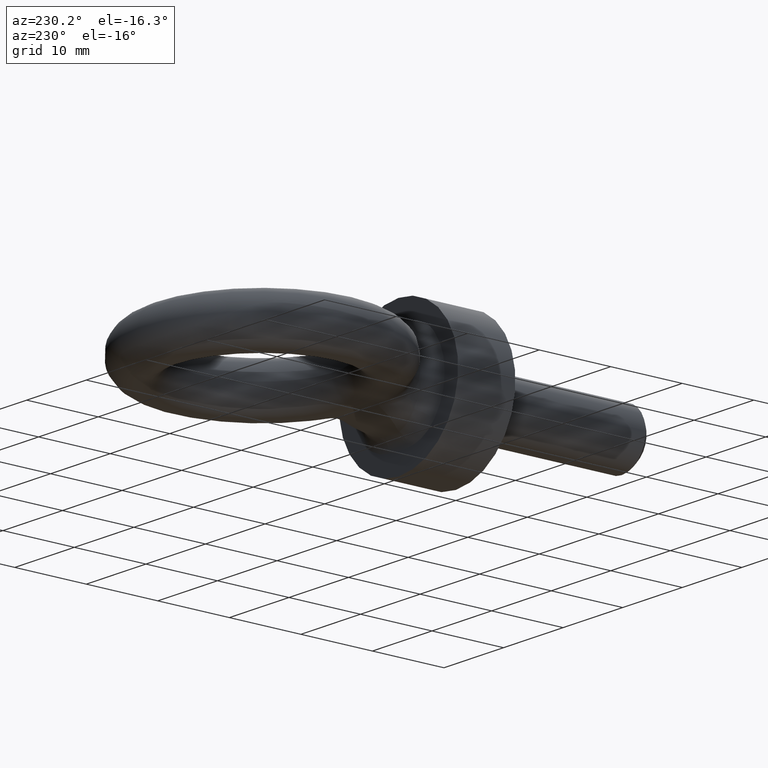
[diagram: clean part render]
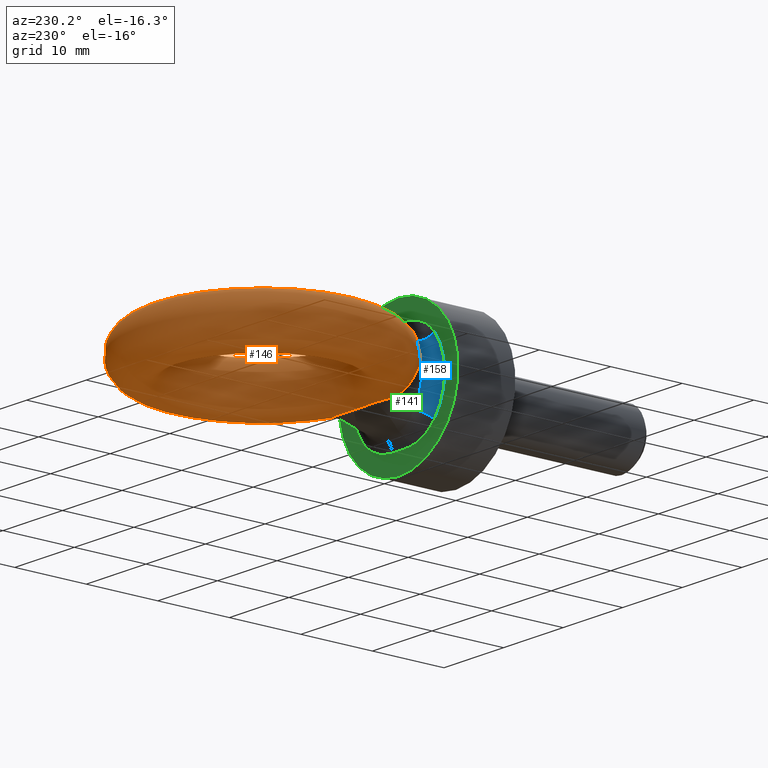
[diagram: same view with three faces highlighted in distinct colors, each labeled with its STEP entity id]
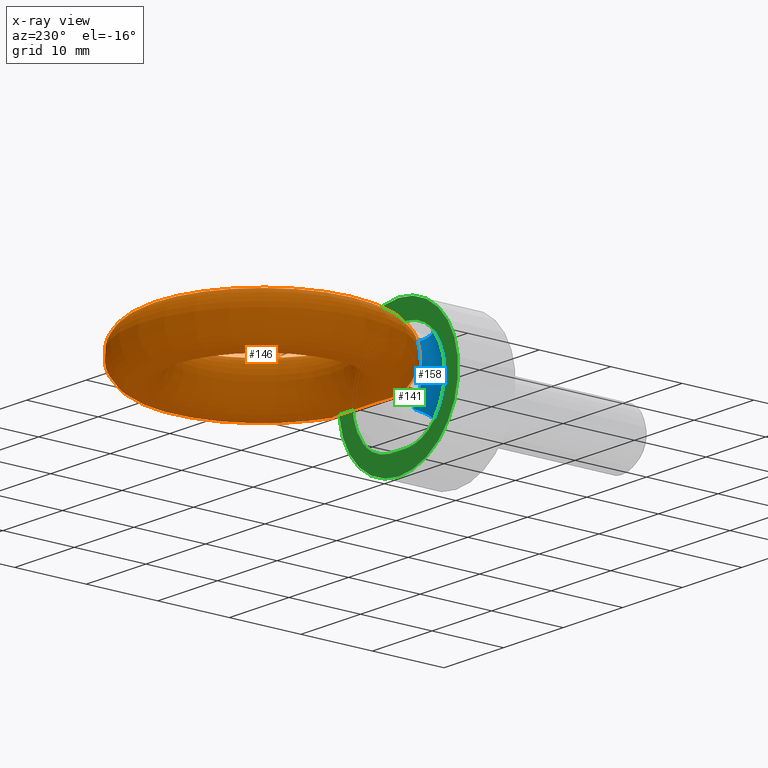
[diagram: x-ray of the same camera — body ghosted, the three highlighted faces saturated]
A machine part, auxiliary view with three faces highlighted in distinct colors.
The next image is the same camera in x-ray (body ghosted, the three faces saturated) — at least one of them is partly hidden behind the body in this view.
Their STEP definitions:

[orange] entity #146 — the highlighted toroidal blend (fillet) surface has major radius 13.5 mm and minor (blend) radius 3.5 mm.
#79=TOROIDAL_SURFACE('',#652,13.5,3.5);
#146=ADVANCED_FACE('',(#187),#79,.T.);
#187=FACE_OUTER_BOUND('',#229,.T.);
#229=EDGE_LOOP('',(#393,#394,#395,#396,#397,#398,#399,#400));
#280=B_SPLINE_CURVE_WITH_KNOTS('',3,(#1162,#1163,#1164,#1165,#1166,#1167,
#1168,#1169,#1170,#1171,#1172,#1173,#1174,#1175,#1176,#1177),
 .UNSPECIFIED.,.F.,.F.,(4,3,3,3,3,4),(0.,0.0906175556233815,0.31320017688697,
0.537413999528253,0.76841460526221,1.),.UNSPECIFIED.);
#281=B_SPLINE_CURVE_WITH_KNOTS('',3,(#1180,#1181,#1182,#1183,#1184,#1185),
 .UNSPECIFIED.,.F.,.F.,(4,2,4),(0.,0.5,1.),.UNSPECIFIED.);
#282=B_SPLINE_CURVE_WITH_KNOTS('',3,(#1187,#1188,#1189,#1190,#1191,#1192,
#1193),.UNSPECIFIED.,.F.,.F.,(4,3,4),(0.,0.612495546188875,1.),
 .UNSPECIFIED.);
#283=B_SPLINE_CURVE_WITH_KNOTS('',3,(#1195,#1196,#1197,#1198,#1199,#1200,
#1201,#1202,#1203,#1204,#1205,#1206,#1207,#1208,#1209,#1210),
 .UNSPECIFIED.,.F.,.F.,(4,3,3,3,3,4),(0.,0.195955899448234,0.458999195335696,
0.711756891813488,0.930843255163097,1.),.UNSPECIFIED.);
#284=B_SPLINE_CURVE_WITH_KNOTS('',3,(#1212,#1213,#1214,#1215,#1216,#1217,
#1218,#1219,#1220,#1221,#1222,#1223,#1224,#1225,#1226,#1227),
 .UNSPECIFIED.,.F.,.F.,(4,3,3,3,3,4),(0.,0.0752145849826018,0.30210714432212,
0.530216371654006,0.764840135848993,1.),.UNSPECIFIED.);
#285=B_SPLINE_CURVE_WITH_KNOTS('',3,(#1229,#1230,#1231,#1232,#1233,#1234,
#1235,#1236,#1237,#1238,#1239,#1240,#1241),.UNSPECIFIED.,.F.,.F.,(4,3,3,
3,4),(0.,0.248458670485199,0.511916327520531,0.831134846658099,1.),
 .UNSPECIFIED.);
#286=B_SPLINE_CURVE_WITH_KNOTS('',3,(#1243,#1244,#1245,#1246,#1247,#1248,
#1249),.UNSPECIFIED.,.F.,.F.,(4,3,4),(0.,0.499640385015774,1.),
 .UNSPECIFIED.);
#287=B_SPLINE_CURVE_WITH_KNOTS('',3,(#1251,#1252,#1253,#1254,#1255,#1256,
#1257,#1258,#1259,#1260,#1261,#1262,#1263,#1264,#1265,#1266),
 .UNSPECIFIED.,.F.,.F.,(4,3,3,3,3,4),(0.,0.193271366590612,0.45459111054938,
0.706822945658072,0.954501272891583,1.),.UNSPECIFIED.);
#393=ORIENTED_EDGE('',*,*,#585,.T.);
#394=ORIENTED_EDGE('',*,*,#586,.T.);
#395=ORIENTED_EDGE('',*,*,#587,.T.);
#396=ORIENTED_EDGE('',*,*,#588,.T.);
#397=ORIENTED_EDGE('',*,*,#589,.T.);
#398=ORIENTED_EDGE('',*,*,#590,.T.);
#399=ORIENTED_EDGE('',*,*,#591,.T.);
#400=ORIENTED_EDGE('',*,*,#592,.T.);
#524=VERTEX_POINT('',#1178);
#525=VERTEX_POINT('',#1179);
#526=VERTEX_POINT('',#1186);
#527=VERTEX_POINT('',#1194);
#528=VERTEX_POINT('',#1211);
#529=VERTEX_POINT('',#1228);
#530=VERTEX_POINT('',#1242);
#531=VERTEX_POINT('',#1250);
#585=EDGE_CURVE('',#524,#525,#280,.T.);
#586=EDGE_CURVE('',#525,#526,#281,.T.);
#587=EDGE_CURVE('',#526,#527,#282,.T.);
#588=EDGE_CURVE('',#527,#528,#283,.T.);
#589=EDGE_CURVE('',#528,#529,#284,.T.);
#590=EDGE_CURVE('',#529,#530,#285,.T.);
#591=EDGE_CURVE('',#530,#531,#286,.T.);
#592=EDGE_CURVE('',#531,#524,#287,.T.);
#652=AXIS2_PLACEMENT_3D('',#1267,#744,#745);
#744=DIRECTION('',(0.,0.,-1.));
#745=DIRECTION('',(-1.,0.,0.));
#1162=CARTESIAN_POINT('',(6.40605372131366,12.178506150028,2.32788226436537));
#1163=CARTESIAN_POINT('',(6.47093425898372,12.0949533342118,2.2130152351109));
#1164=CARTESIAN_POINT('',(6.5340566794516,12.0188750550742,2.0912711670128));
#1165=CARTESIAN_POINT('',(6.5931996966537,11.9504355498682,1.96397965412876));
#1166=CARTESIAN_POINT('',(6.73687137589442,11.7841806121846,1.65475996473334));
#1167=CARTESIAN_POINT('',(6.85851549453243,11.6603422088572,1.30599939781528));
#1168=CARTESIAN_POINT('',(6.93545843204723,11.5833331461563,0.942614669657472));
#1169=CARTESIAN_POINT('',(7.01285340043065,11.5058716641089,0.577095098203874));
#1170=CARTESIAN_POINT('',(7.04668504764769,11.4740819364042,0.18655894366253));
#1171=CARTESIAN_POINT('',(7.03030393803473,11.4899528488556,-0.194327644226145));
#1172=CARTESIAN_POINT('',(7.01343691248848,11.506294543166,-0.586512542559645));
#1173=CARTESIAN_POINT('',(6.94284461894218,11.5736003807124,-0.979892168865486));
#1174=CARTESIAN_POINT('',(6.8329568198243,11.687884734184,-1.33936998481688));
#1175=CARTESIAN_POINT('',(6.72264006285432,11.8026152078909,-1.70025105784549));
#1176=CARTESIAN_POINT('',(6.56992894345612,11.9674684992284,-2.03775119252303));
#1177=CARTESIAN_POINT('',(6.40605372131366,12.178506150028,-2.32788226436537));
#1178=CARTESIAN_POINT('',(6.40605372131366,12.178506150028,2.32788226436537));
#1179=CARTESIAN_POINT('',(6.40605372131366,12.178506150028,-2.32788226436537));
#1180=CARTESIAN_POINT('',(6.40605372131366,12.178506150028,-2.32788226436537));
#1181=CARTESIAN_POINT('',(6.10075381576734,12.5716697656955,-2.86839710041857));
#1182=CARTESIAN_POINT('',(5.56834558277857,12.9994247208667,-3.1957141442558));
#1183=CARTESIAN_POINT('',(4.30770198745205,13.6648353147877,-3.50991708784342));
#1184=CARTESIAN_POINT('',(3.59187649562161,13.8970791302572,-3.5013174242771));
#1185=CARTESIAN_POINT('',(2.86015282552049,13.8509623368029,-3.49946773933094));
#1186=CARTESIAN_POINT('',(2.86015282552053,13.8509623368031,-3.49946773933081));
#1187=CARTESIAN_POINT('',(2.86015282552053,13.8509623368031,-3.49946773933081));
#1188=CARTESIAN_POINT('',(1.69472543130368,13.7775114199868,-3.49652171804569));
#1189=CARTESIAN_POINT('',(0.525295072000843,13.7675053584302,-3.48646810574505));
#1190=CARTESIAN_POINT('',(-0.642365138591432,13.7809224478603,-3.4902551526797));
#1191=CARTESIAN_POINT('',(-1.38125010290466,13.789412662355,-3.49265156219488));
#1192=CARTESIAN_POINT('',(-2.12049000431679,13.8110638862383,-3.49864251514948));
#1193=CARTESIAN_POINT('',(-2.85768012193657,13.8618397433787,-3.49980863019068));
#1194=CARTESIAN_POINT('',(-2.85768012193657,13.8618397433787,-3.49980863019068));
#1195=CARTESIAN_POINT('',(-2.85768012193657,13.8618397433787,-3.49980863019068));
#1196=CARTESIAN_POINT('',(-3.14122358651709,13.8813695255971,-3.50025714990218));
#1197=CARTESIAN_POINT('',(-3.42966640027798,13.8602710608942,-3.50100948083918));
#1198=CARTESIAN_POINT('',(-3.70843582398385,13.8055519727811,-3.49252775504067));
#1199=CARTESIAN_POINT('',(-4.08152993047564,13.7323180828652,-3.48117614457264));
#1200=CARTESIAN_POINT('',(-4.44618769075155,13.6003576503128,-3.45153423607972));
#1201=CARTESIAN_POINT('',(-4.78342881397976,13.4394717902394,-3.3802921219649));
#1202=CARTESIAN_POINT('',(-5.10718373878407,13.2850197203627,-3.31189896434118));
#1203=CARTESIAN_POINT('',(-5.41364201436673,13.099568615518,-3.20310446698256));
#1204=CARTESIAN_POINT('',(-5.6789094916096,12.9053586395757,-3.04415174446513));
#1205=CARTESIAN_POINT('',(-5.90892799839995,12.7369554522181,-2.90632079638308));
#1206=CARTESIAN_POINT('',(-6.11293542985732,12.5578343608373,-2.72709112241677));
#1207=CARTESIAN_POINT('',(-6.27155864733602,12.3863162984656,-2.51334887955305));
#1208=CARTESIAN_POINT('',(-6.32227534758037,12.3314767214222,-2.44500893894928));
#1209=CARTESIAN_POINT('',(-6.36872937145069,12.2770964514993,-2.37288745147997));
#1210=CARTESIAN_POINT('',(-6.41039027625731,12.2238053629871,-2.29755924114959));
#1211=CARTESIAN_POINT('',(-6.41039027625731,12.2238053629871,-2.29755924114959));
#1212=CARTESIAN_POINT('',(-6.41039027625731,12.2238053629871,-2.29755924114959));
#1213=CARTESIAN_POINT('',(-6.4628830621407,12.1566585328414,-2.20264561327222));
#1214=CARTESIAN_POINT('',(-6.51408603918062,12.0945428762236,-2.10321696764668));
#1215=CARTESIAN_POINT('',(-6.56278110721273,12.0375370596492,-2.00000886064301));
#1216=CARTESIAN_POINT('',(-6.70795405039452,11.8675875656853,-1.69231805622597));
#1217=CARTESIAN_POINT('',(-6.83208809096107,11.7404729245261,-1.34452506526286));
#1218=CARTESIAN_POINT('',(-6.91189080340936,11.6602878860295,-0.9814361894478));
#1219=CARTESIAN_POINT('',(-6.99201245690367,11.5797823784753,-0.616896185691144));
#1220=CARTESIAN_POINT('',(-7.02921278264602,11.544789178918,-0.226770474448808));
#1221=CARTESIAN_POINT('',(-7.01621841832854,11.5573780561604,0.15462524801001));
#1222=CARTESIAN_POINT('',(-7.00286109737949,11.5703185640303,0.546674058479641));
#1223=CARTESIAN_POINT('',(-6.93605459799089,11.6338895532823,0.940855132902103));
#1224=CARTESIAN_POINT('',(-6.82939845627469,11.7444726036354,1.30202545417218));
#1225=CARTESIAN_POINT('',(-6.72235905454284,11.8554530250253,1.66449361109203));
#1226=CARTESIAN_POINT('',(-6.57247970953383,12.0164665551592,2.00448094679044));
#1227=CARTESIAN_POINT('',(-6.41039027625731,12.2238053629871,2.29755924114959));
#1228=CARTESIAN_POINT('',(-6.41039027625731,12.2238053629871,2.29755924114959));
#1229=CARTESIAN_POINT('',(-6.41039027625731,12.2238053629871,2.29755924114959));
#1230=CARTESIAN_POINT('',(-6.26292155040839,12.4124419026513,2.56420143841971));
#1231=CARTESIAN_POINT('',(-6.05171536624216,12.6173172771946,2.79149380125507));
#1232=CARTESIAN_POINT('',(-5.80393175152732,12.8108388075596,2.96348661543364));
#1233=CARTESIAN_POINT('',(-5.54056171645867,13.0165334911949,3.1462983544338));
#1234=CARTESIAN_POINT('',(-5.22835577435629,13.2162750546144,3.27386658945499));
#1235=CARTESIAN_POINT('',(-4.89611575377174,13.3841294643407,3.35471011746765));
#1236=CARTESIAN_POINT('',(-4.49456053886666,13.5870033187662,3.45242002071078));
#1237=CARTESIAN_POINT('',(-4.04940146846539,13.7518355636479,3.4856049293962));
#1238=CARTESIAN_POINT('',(-3.59512639333957,13.8259202163617,3.4954658102107));
#1239=CARTESIAN_POINT('',(-3.3522799489439,13.8655244021975,3.50073724149877));
#1240=CARTESIAN_POINT('',(-3.10320919822015,13.8787511872562,3.5001970173137));
#1241=CARTESIAN_POINT('',(-2.85768012193675,13.8618397433787,3.49980863019068));
#1242=CARTESIAN_POINT('',(-2.85768012193675,13.8618397433787,3.49980863019068));
#1243=CARTESIAN_POINT('',(-2.85768012193675,13.8618397433787,3.49980863019068));
#1244=CARTESIAN_POINT('',(-1.90728539153385,13.7963788725605,3.49830526007799));
#1245=CARTESIAN_POINT('',(-0.953667054965296,13.7781158730942,3.48943864075467));
#1246=CARTESIAN_POINT('',(-0.00102028164533801,13.7768890981453,3.48905184122442));
#1247=CARTESIAN_POINT('',(0.953029096857215,13.7756605169856,3.48866447219976));
#1248=CARTESIAN_POINT('',(1.90799478940327,13.7909526948006,3.49706083019593));
#1249=CARTESIAN_POINT('',(2.86015282552053,13.8509623368031,3.49946773933081));
#1250=CARTESIAN_POINT('',(2.86015282552053,13.8509623368031,3.49946773933081));
#1251=CARTESIAN_POINT('',(2.86015282552053,13.8509623368031,3.49946773933081));
#1252=CARTESIAN_POINT('',(3.1398171164765,13.8685881440164,3.50017468766404));
#1253=CARTESIAN_POINT('',(3.42406069310178,13.845992672454,3.50159550197131));
#1254=CARTESIAN_POINT('',(3.69861081489003,13.7903527058103,3.4945450247029));
#1255=CARTESIAN_POINT('',(4.06876901744305,13.715336931245,3.48503932142433));
#1256=CARTESIAN_POINT('',(4.43009759837736,13.5818419460157,3.45843371008871));
#1257=CARTESIAN_POINT('',(4.7647706430057,13.419788507595,3.39159467926873));
#1258=CARTESIAN_POINT('',(5.08752240344994,13.2635075241821,3.32713650072768));
#1259=CARTESIAN_POINT('',(5.39330398575747,13.0763134801594,3.22338091711836));
#1260=CARTESIAN_POINT('',(5.65915569533128,12.8800201699856,3.0699563222032));
#1261=CARTESIAN_POINT('',(5.919301847846,12.6879395943595,2.91982443803254));
#1262=CARTESIAN_POINT('',(6.14773445377352,12.4813850121509,2.71668368324998));
#1263=CARTESIAN_POINT('',(6.31696103017738,12.2867107608401,2.4705640932924));
#1264=CARTESIAN_POINT('',(6.34860619826605,12.2503069078745,2.42454002331691));
#1265=CARTESIAN_POINT('',(6.3783535296627,12.2141783114219,2.37692376184656));
#1266=CARTESIAN_POINT('',(6.40605372131366,12.178506150028,2.32788226436537));
#1267=CARTESIAN_POINT('',(0.0837289890841756,27.,0.));

[blue] entity #158 — the highlighted toroidal blend (fillet) surface has major radius 7.75 mm and minor (blend) radius 1.75 mm.
#80=TOROIDAL_SURFACE('',#667,7.75,1.75);
#158=ADVANCED_FACE('',(#199),#80,.F.);
#199=FACE_OUTER_BOUND('',#241,.T.);
#241=EDGE_LOOP('',(#445,#446,#447,#448));
#289=CIRCLE('',#627,6.);
#300=CIRCLE('',#650,7.75);
#311=CIRCLE('',#663,1.75);
#313=CIRCLE('',#666,1.75);
#445=ORIENTED_EDGE('',*,*,#603,.T.);
#446=ORIENTED_EDGE('',*,*,#575,.F.);
#447=ORIENTED_EDGE('',*,*,#605,.F.);
#448=ORIENTED_EDGE('',*,*,#537,.F.);
#488=VERTEX_POINT('',#813);
#489=VERTEX_POINT('',#815);
#518=VERTEX_POINT('',#1073);
#519=VERTEX_POINT('',#1075);
#537=EDGE_CURVE('',#488,#489,#289,.T.);
#575=EDGE_CURVE('',#518,#519,#300,.T.);
#603=EDGE_CURVE('',#488,#519,#311,.T.);
#605=EDGE_CURVE('',#489,#518,#313,.T.);
#627=AXIS2_PLACEMENT_3D('',#814,#690,#691);
#650=AXIS2_PLACEMENT_3D('',#1074,#739,#740);
#663=AXIS2_PLACEMENT_3D('',#1458,#766,#767);
#666=AXIS2_PLACEMENT_3D('',#1473,#772,#773);
#667=AXIS2_PLACEMENT_3D('',#1474,#774,#775);
#690=DIRECTION('',(0.,1.,0.));
#691=DIRECTION('',(0.,0.,-1.));
#739=DIRECTION('',(0.,-1.,0.));
#740=DIRECTION('',(0.,0.,-1.));
#766=DIRECTION('',(0.63638975997625,3.15417216143442E-16,-0.771367664215561));
#767=DIRECTION('',(-0.771367664215561,0.,-0.63638975997625));
#772=DIRECTION('',(-0.63638975997625,0.,-0.771367664215561));
#773=DIRECTION('',(-0.771367664215561,0.,0.636389759976251));
#774=DIRECTION('',(0.,-1.,0.));
#775=DIRECTION('',(0.,0.,-1.));
#813=CARTESIAN_POINT('',(-4.62820598529337,9.75,-3.8183385598575));
#814=CARTESIAN_POINT('',(0.,9.75,0.));
#815=CARTESIAN_POINT('',(-4.62820598529337,9.75,3.8183385598575));
#1073=CARTESIAN_POINT('',(-5.9780993976706,8.,4.93202063981594));
#1074=CARTESIAN_POINT('',(0.,8.,0.));
#1075=CARTESIAN_POINT('',(-5.9780993976706,8.,-4.93202063981594));
#1458=CARTESIAN_POINT('',(-5.9780993976706,9.75,-4.93202063981594));
#1473=CARTESIAN_POINT('',(-5.9780993976706,9.75,4.93202063981594));
#1474=CARTESIAN_POINT('',(0.,9.75,0.));

[green] entity #141 — the highlighted planar face has unit normal (0, -1, 0).
#88=FACE_BOUND('',#223,.T.);
#89=FACE_BOUND('',#224,.T.);
#120=PLANE('',#651);
#123=LINE('',#1062,#127);
#124=LINE('',#1086,#128);
#127=VECTOR('',#738,1.);
#128=VECTOR('',#741,1.);
#141=ADVANCED_FACE('',(#88,#89),#120,.F.);
#223=EDGE_LOOP('',(#368,#369,#370,#371,#372,#373,#374,#375,#376,#377,#378,
#379));
#224=EDGE_LOOP('',(#380));
#268=B_SPLINE_CURVE_WITH_KNOTS('',3,(#1052,#1053,#1054,#1055),
 .UNSPECIFIED.,.F.,.F.,(4,4),(0.,1.),.UNSPECIFIED.);
#269=B_SPLINE_CURVE_WITH_KNOTS('',3,(#1057,#1058,#1059,#1060),
 .UNSPECIFIED.,.F.,.F.,(4,4),(0.,1.),.UNSPECIFIED.);
#270=B_SPLINE_CURVE_WITH_KNOTS('',3,(#1064,#1065,#1066,#1067),
 .UNSPECIFIED.,.F.,.F.,(4,4),(0.,1.),.UNSPECIFIED.);
#271=B_SPLINE_CURVE_WITH_KNOTS('',3,(#1069,#1070,#1071,#1072),
 .UNSPECIFIED.,.F.,.F.,(4,4),(0.,1.),.UNSPECIFIED.);
#272=B_SPLINE_CURVE_WITH_KNOTS('',3,(#1076,#1077,#1078,#1079),
 .UNSPECIFIED.,.F.,.F.,(4,4),(0.,1.),.UNSPECIFIED.);
#273=B_SPLINE_CURVE_WITH_KNOTS('',3,(#1081,#1082,#1083,#1084),
 .UNSPECIFIED.,.F.,.F.,(4,4),(0.,1.),.UNSPECIFIED.);
#274=B_SPLINE_CURVE_WITH_KNOTS('',3,(#1088,#1089,#1090,#1091),
 .UNSPECIFIED.,.F.,.F.,(4,4),(0.,1.),.UNSPECIFIED.);
#275=B_SPLINE_CURVE_WITH_KNOTS('',3,(#1093,#1094,#1095,#1096),
 .UNSPECIFIED.,.F.,.F.,(4,4),(0.,1.),.UNSPECIFIED.);
#298=CIRCLE('',#647,10.);
#299=CIRCLE('',#649,7.75);
#300=CIRCLE('',#650,7.75);
#368=ORIENTED_EDGE('',*,*,#569,.T.);
#369=ORIENTED_EDGE('',*,*,#570,.T.);
#370=ORIENTED_EDGE('',*,*,#571,.T.);
#371=ORIENTED_EDGE('',*,*,#572,.T.);
#372=ORIENTED_EDGE('',*,*,#573,.T.);
#373=ORIENTED_EDGE('',*,*,#574,.T.);
#374=ORIENTED_EDGE('',*,*,#575,.T.);
#375=ORIENTED_EDGE('',*,*,#576,.T.);
#376=ORIENTED_EDGE('',*,*,#577,.T.);
#377=ORIENTED_EDGE('',*,*,#578,.T.);
#378=ORIENTED_EDGE('',*,*,#579,.T.);
#379=ORIENTED_EDGE('',*,*,#580,.T.);
#380=ORIENTED_EDGE('',*,*,#568,.T.);
#511=VERTEX_POINT('',#1047);
#512=VERTEX_POINT('',#1050);
#513=VERTEX_POINT('',#1051);
#514=VERTEX_POINT('',#1056);
#515=VERTEX_POINT('',#1061);
#516=VERTEX_POINT('',#1063);
#517=VERTEX_POINT('',#1068);
#518=VERTEX_POINT('',#1073);
#519=VERTEX_POINT('',#1075);
#520=VERTEX_POINT('',#1080);
#521=VERTEX_POINT('',#1085);
#522=VERTEX_POINT('',#1087);
#523=VERTEX_POINT('',#1092);
#568=EDGE_CURVE('',#511,#511,#298,.T.);
#569=EDGE_CURVE('',#512,#513,#299,.T.);
#570=EDGE_CURVE('',#513,#514,#268,.T.);
#571=EDGE_CURVE('',#514,#515,#269,.T.);
#572=EDGE_CURVE('',#515,#516,#123,.T.);
#573=EDGE_CURVE('',#516,#517,#270,.T.);
#574=EDGE_CURVE('',#517,#518,#271,.T.);
#575=EDGE_CURVE('',#518,#519,#300,.T.);
#576=EDGE_CURVE('',#519,#520,#272,.T.);
#577=EDGE_CURVE('',#520,#521,#273,.T.);
#578=EDGE_CURVE('',#521,#522,#124,.T.);
#579=EDGE_CURVE('',#522,#523,#274,.T.);
#580=EDGE_CURVE('',#523,#512,#275,.T.);
#647=AXIS2_PLACEMENT_3D('',#1046,#732,#733);
#649=AXIS2_PLACEMENT_3D('',#1049,#736,#737);
#650=AXIS2_PLACEMENT_3D('',#1074,#739,#740);
#651=AXIS2_PLACEMENT_3D('',#1097,#742,#743);
#732=DIRECTION('',(0.,1.,0.));
#733=DIRECTION('',(0.,0.,1.));
#736=DIRECTION('',(0.,-1.,0.));
#737=DIRECTION('',(0.,0.,-1.));
#738=DIRECTION('',(-1.,0.,0.));
#739=DIRECTION('',(0.,-1.,0.));
#740=DIRECTION('',(0.,0.,-1.));
#741=DIRECTION('',(1.,0.,0.));
#742=DIRECTION('',(0.,-1.,0.));
#743=DIRECTION('',(0.,0.,-1.));
#1046=CARTESIAN_POINT('',(0.,8.,0.));
#1047=CARTESIAN_POINT('',(0.,8.,10.));
#1049=CARTESIAN_POINT('',(0.,8.,0.));
#1050=CARTESIAN_POINT('',(5.9780993976706,8.,-4.93202063981594));
#1051=CARTESIAN_POINT('',(5.9780993976706,8.,4.93202063981594));
#1052=CARTESIAN_POINT('',(5.9780993976706,8.,4.93202063981594));
#1053=CARTESIAN_POINT('',(4.8913886698398,8.,6.24922209169996));
#1054=CARTESIAN_POINT('',(3.26606996730123,8.,7.00911915896309));
#1055=CARTESIAN_POINT('',(1.56577475131054,8.,7.11238279846129));
#1056=CARTESIAN_POINT('',(1.56577475131053,8.,7.11238279846127));
#1057=CARTESIAN_POINT('',(1.56577475131053,8.,7.11238279846127));
#1058=CARTESIAN_POINT('',(1.40799304786523,8.,7.12196531847934));
#1059=CARTESIAN_POINT('',(1.24985058358261,8.,7.12684822307149));
#1060=CARTESIAN_POINT('',(1.09177816147174,8.,7.12684822307186));
#1061=CARTESIAN_POINT('',(1.09177816147174,8.,7.12684822307186));
#1062=CARTESIAN_POINT('',(10.,8.,7.12684822307186));
#1063=CARTESIAN_POINT('',(-1.09177816145627,8.,7.12684822307186));
#1064=CARTESIAN_POINT('',(-1.09177816145627,8.,7.12684822307186));
#1065=CARTESIAN_POINT('',(-1.24985058357185,8.,7.12684822307187));
#1066=CARTESIAN_POINT('',(-1.40799304785921,8.,7.12196531847975));
#1067=CARTESIAN_POINT('',(-1.56577475130921,8.,7.11238279846135));
#1068=CARTESIAN_POINT('',(-1.56577475130921,8.,7.11238279846135));
#1069=CARTESIAN_POINT('',(-1.56577475130921,8.,7.11238279846135));
#1070=CARTESIAN_POINT('',(-3.26293204511539,8.,7.00930973367201));
#1071=CARTESIAN_POINT('',(-4.89482161589528,8.,6.24506101974887));
#1072=CARTESIAN_POINT('',(-5.9780993976706,8.,4.93202063981594));
#1073=CARTESIAN_POINT('',(-5.9780993976706,8.,4.93202063981594));
#1074=CARTESIAN_POINT('',(0.,8.,0.));
#1075=CARTESIAN_POINT('',(-5.9780993976706,8.,-4.93202063981594));
#1076=CARTESIAN_POINT('',(-5.9780993976706,8.,-4.93202063981594));
#1077=CARTESIAN_POINT('',(-4.89138866983721,8.,-6.24922209170309));
#1078=CARTESIAN_POINT('',(-3.26606996729329,8.,-7.00911915896636));
#1079=CARTESIAN_POINT('',(-1.56577475129843,8.,-7.11238279846203));
#1080=CARTESIAN_POINT('',(-1.56577475129842,8.,-7.112382798462));
#1081=CARTESIAN_POINT('',(-1.56577475129842,8.,-7.112382798462));
#1082=CARTESIAN_POINT('',(-1.40799304785702,8.,-7.1219653184796));
#1083=CARTESIAN_POINT('',(-1.24985058357832,8.,-7.12684822307149));
#1084=CARTESIAN_POINT('',(-1.09177816147137,8.,-7.12684822307186));
#1085=CARTESIAN_POINT('',(-1.09177816147137,8.,-7.12684822307186));
#1086=CARTESIAN_POINT('',(10.,8.,-7.12684822307186));
#1087=CARTESIAN_POINT('',(1.09177816145627,8.,-7.12684822307186));
#1088=CARTESIAN_POINT('',(1.09177816145627,8.,-7.12684822307186));
#1089=CARTESIAN_POINT('',(1.24985058357185,8.,-7.12684822307187));
#1090=CARTESIAN_POINT('',(1.40799304785921,8.,-7.12196531847975));
#1091=CARTESIAN_POINT('',(1.5657747513092,8.,-7.11238279846135));
#1092=CARTESIAN_POINT('',(1.5657747513092,8.,-7.11238279846135));
#1093=CARTESIAN_POINT('',(1.5657747513092,8.,-7.11238279846135));
#1094=CARTESIAN_POINT('',(3.26293204511539,8.,-7.00930973367201));
#1095=CARTESIAN_POINT('',(4.89482161589528,8.,-6.24506101974887));
#1096=CARTESIAN_POINT('',(5.9780993976706,8.,-4.93202063981594));
#1097=CARTESIAN_POINT('',(10.,8.,0.));